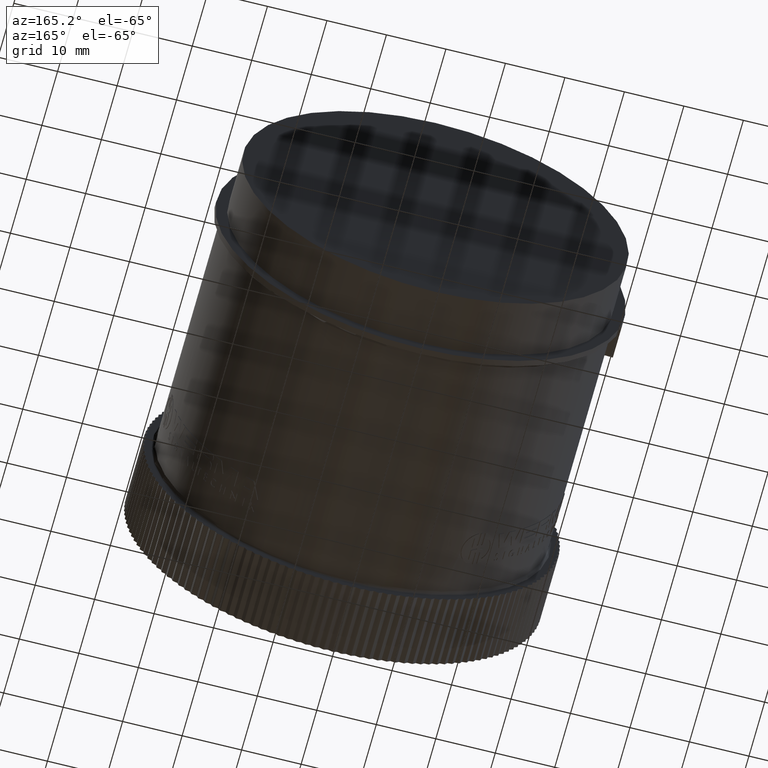
[diagram: clean part render]
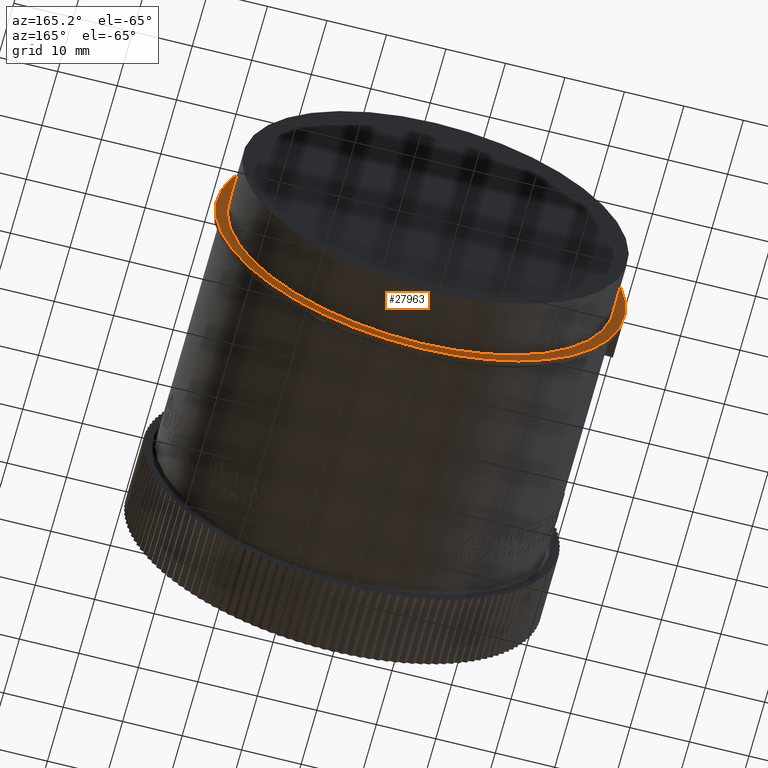
[diagram: same view with one face highlighted and labeled with its STEP entity id]
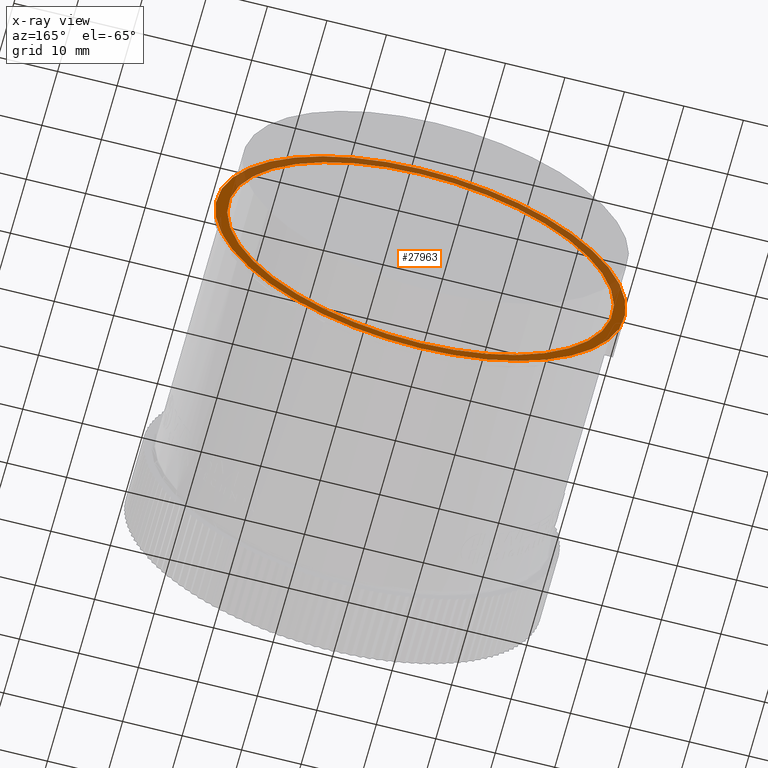
[diagram: x-ray of the same camera — body ghosted, the highlighted face saturated]
A machine part, auxiliary view. The second image highlights one B-rep face of the part: STEP entity #27963.
The next image is the same camera in x-ray: the body ghosted, the highlighted face saturated — about 42% of this face is hidden behind the body in this view.
In plain terms, the highlighted planar face has unit normal (0, 1, 0).
Its self-contained STEP definition (entity closure, byte-faithful):
#589 = DIRECTION ( 'NONE',  ( 0.0000000000000000000, 0.0000000000000000000, -1.000000000000000000 ) ) ;
#1272 = VERTEX_POINT ( 'NONE', #8681 ) ;
#2061 = CIRCLE ( 'NONE', #3530, 1.358267716535433300 ) ;
#2398 = CIRCLE ( 'NONE', #32967, 1.358267716535433300 ) ;
#3530 = AXIS2_PLACEMENT_3D ( 'NONE', #34165, #10783, #38079 ) ;
#3696 = AXIS2_PLACEMENT_3D ( 'NONE', #44583, #48466, #25264 ) ;
#5240 = ORIENTED_EDGE ( 'NONE', *, *, #24072, .F. ) ;
#5543 = VERTEX_POINT ( 'NONE', #34848 ) ;
#6084 = VERTEX_POINT ( 'NONE', #15958 ) ;
#7061 = EDGE_CURVE ( 'NONE', #5543, #6084, #42886, .T. ) ;
#8681 = CARTESIAN_POINT ( 'NONE',  ( 1.663398211440302800E-016, 2.204724409448819400, 1.358267716535433300 ) ) ;
#9567 = ORIENTED_EDGE ( 'NONE', *, *, #40299, .T. ) ;
#10783 = DIRECTION ( 'NONE',  ( 0.0000000000000000000, -1.000000000000000000, 0.0000000000000000000 ) ) ;
#12043 = ORIENTED_EDGE ( 'NONE', *, *, #7061, .T. ) ;
#15958 = CARTESIAN_POINT ( 'NONE',  ( 1.566969329617676700E-016, 2.204724409448819400, 1.279527559055118300 ) ) ;
#17370 = CARTESIAN_POINT ( 'NONE',  ( 0.0000000000000000000, 2.204724409448819400, 0.0000000000000000000 ) ) ;
#18564 = CIRCLE ( 'NONE', #22356, 1.279527559055118300 ) ;
#20858 = CARTESIAN_POINT ( 'NONE',  ( 0.0000000000000000000, 2.204724409448819400, 0.0000000000000000000 ) ) ;
#21315 = DIRECTION ( 'NONE',  ( 0.0000000000000000000, 0.0000000000000000000, -1.000000000000000000 ) ) ;
#22356 = AXIS2_PLACEMENT_3D ( 'NONE', #47154, #23942, #589 ) ;
#23942 = DIRECTION ( 'NONE',  ( 0.0000000000000000000, -1.000000000000000000, 0.0000000000000000000 ) ) ;
#24072 = EDGE_CURVE ( 'NONE', #1272, #30436, #2061, .T. ) ;
#24777 = DIRECTION ( 'NONE',  ( 0.0000000000000000000, 0.0000000000000000000, -1.000000000000000000 ) ) ;
#25264 = DIRECTION ( 'NONE',  ( 0.0000000000000000000, -0.0000000000000000000, 1.000000000000000000 ) ) ;
#25834 = AXIS2_PLACEMENT_3D ( 'NONE', #17370, #44550, #21315 ) ;
#26818 = FACE_BOUND ( 'NONE', #49515, .T. ) ;
#27963 = ADVANCED_FACE ( 'NONE', ( #26818, #43786 ), #48311, .T. ) ;
#29801 = ORIENTED_EDGE ( 'NONE', *, *, #44192, .F. ) ;
#30436 = VERTEX_POINT ( 'NONE', #35831 ) ;
#32967 = AXIS2_PLACEMENT_3D ( 'NONE', #20858, #47995, #24777 ) ;
#34165 = CARTESIAN_POINT ( 'NONE',  ( 0.0000000000000000000, 2.204724409448819400, 0.0000000000000000000 ) ) ;
#34848 = CARTESIAN_POINT ( 'NONE',  ( 0.0000000000000000000, 2.204724409448819400, -1.279527559055118300 ) ) ;
#35831 = CARTESIAN_POINT ( 'NONE',  ( 0.0000000000000000000, 2.204724409448819400, -1.358267716535433300 ) ) ;
#38079 = DIRECTION ( 'NONE',  ( 0.0000000000000000000, 0.0000000000000000000, -1.000000000000000000 ) ) ;
#40299 = EDGE_CURVE ( 'NONE', #6084, #5543, #18564, .T. ) ;
#42886 = CIRCLE ( 'NONE', #25834, 1.279527559055118300 ) ;
#43786 = FACE_OUTER_BOUND ( 'NONE', #45728, .T. ) ;
#44192 = EDGE_CURVE ( 'NONE', #30436, #1272, #2398, .T. ) ;
#44550 = DIRECTION ( 'NONE',  ( 0.0000000000000000000, -1.000000000000000000, 0.0000000000000000000 ) ) ;
#44583 = CARTESIAN_POINT ( 'NONE',  ( 1.318897637795275700, 2.204724409448819400, 0.0000000000000000000 ) ) ;
#45728 = EDGE_LOOP ( 'NONE', ( #29801, #5240 ) ) ;
#47154 = CARTESIAN_POINT ( 'NONE',  ( 0.0000000000000000000, 2.204724409448819400, 0.0000000000000000000 ) ) ;
#47995 = DIRECTION ( 'NONE',  ( 0.0000000000000000000, -1.000000000000000000, 0.0000000000000000000 ) ) ;
#48311 = PLANE ( 'NONE',  #3696 ) ;
#48466 = DIRECTION ( 'NONE',  ( 0.0000000000000000000, 1.000000000000000000, 0.0000000000000000000 ) ) ;
#49515 = EDGE_LOOP ( 'NONE', ( #12043, #9567 ) ) ;